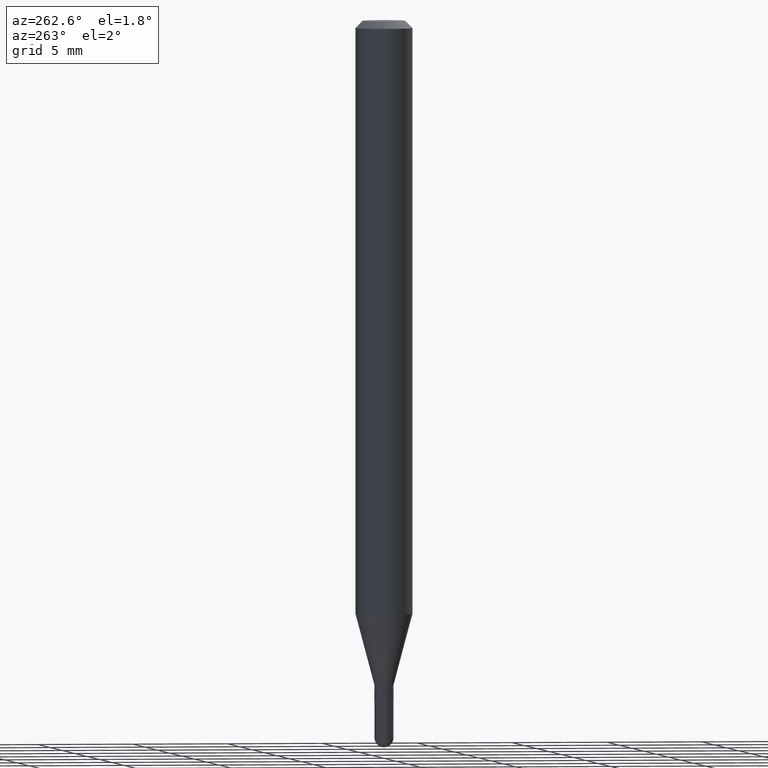
[diagram: clean part render]
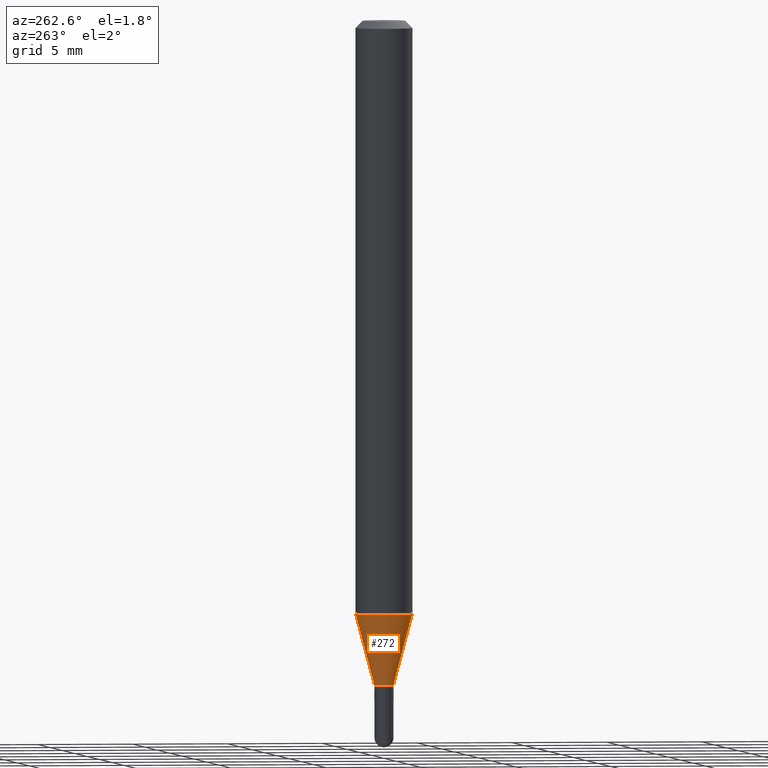
[diagram: same view with one face highlighted and labeled with its STEP entity id]
A machine part, auxiliary view. The second image highlights one B-rep face of the part: STEP entity #272.
In plain terms, the highlighted conical surface has half-angle 15 deg.
Its self-contained STEP definition (entity closure, byte-faithful):
#4 = DIRECTION ( 'NONE',  ( -6.982962677686265922E-15, -1.000000000000000000, 0.000000000000000000 ) ) ;
#9 = DIRECTION ( 'NONE',  ( -2.446456800980005402E-29, 3.490066474063722068E-15, 1.000000000000000000 ) ) ;
#14 = ORIENTED_EDGE ( 'NONE', *, *, #67, .T. ) ;
#15 = EDGE_LOOP ( 'NONE', ( #253, #14, #455, #395 ) ) ;
#41 = AXIS2_PLACEMENT_3D ( 'NONE', #121, #193, #351 ) ;
#62 = VECTOR ( 'NONE', #276, 39.37007874015748143 ) ;
#67 = EDGE_CURVE ( 'NONE', #433, #138, #108, .T. ) ;
#69 = EDGE_CURVE ( 'NONE', #433, #250, #230, .T. ) ;
#76 = CARTESIAN_POINT ( 'NONE',  ( 3.346997549420744839E-29, -4.774759943166577128E-15, -1.368099999999999872 ) ) ;
#80 = VECTOR ( 'NONE', #129, 39.37007874015748854 ) ;
#108 = CIRCLE ( 'NONE', #296, 0.01969999999999951998 ) ;
#115 = CARTESIAN_POINT ( 'NONE',  ( 1.399769189447697785E-16, 0.01969999999999474255, -1.368099999999999872 ) ) ;
#121 = CARTESIAN_POINT ( 'NONE',  ( 2.987720201931407293E-29, -4.262222045558578692E-15, -1.221243800722163320 ) ) ;
#125 = CARTESIAN_POINT ( 'NONE',  ( -4.123439461173442039E-16, -0.05905000000000427962, -1.221243800722163320 ) ) ;
#129 = DIRECTION ( 'NONE',  ( -1.807323732225332111E-15, -0.2588190451025184635, 0.9659258262890689783 ) ) ;
#138 = VERTEX_POINT ( 'NONE', #312 ) ;
#153 = DIRECTION ( 'NONE',  ( -2.446456800980005402E-29, 3.490066474063722068E-15, 1.000000000000000000 ) ) ;
#156 = CONICAL_SURFACE ( 'NONE', #306, 0.01969999999999951998, 0.2617993877991505736 ) ;
#163 = DIRECTION ( 'NONE',  ( -6.982962677686265922E-15, -1.000000000000000000, 0.000000000000000000 ) ) ;
#193 = DIRECTION ( 'NONE',  ( -2.446456800980005402E-29, 3.490066474063722068E-15, 1.000000000000000000 ) ) ;
#207 = CARTESIAN_POINT ( 'NONE',  ( 3.346997549420744839E-29, -4.774759943166577128E-15, -1.368099999999999872 ) ) ;
#215 = CIRCLE ( 'NONE', #41, 0.05904999999999999832 ) ;
#230 = LINE ( 'NONE', #115, #62 ) ;
#250 = VERTEX_POINT ( 'NONE', #364 ) ;
#253 = ORIENTED_EDGE ( 'NONE', *, *, #69, .F. ) ;
#260 = VERTEX_POINT ( 'NONE', #125 ) ;
#272 = ADVANCED_FACE ( 'NONE', ( #440 ), #156, .T. ) ;
#275 = EDGE_CURVE ( 'NONE', #138, #260, #325, .T. ) ;
#276 = DIRECTION ( 'NONE',  ( 1.839019923739602287E-15, 0.2588190451025252359, 0.9659258262890670910 ) ) ;
#296 = AXIS2_PLACEMENT_3D ( 'NONE', #76, #153, #4 ) ;
#306 = AXIS2_PLACEMENT_3D ( 'NONE', #207, #9, #163 ) ;
#312 = CARTESIAN_POINT ( 'NONE',  ( -1.375643647503826063E-16, -0.01970000000000429741, -1.368099999999999872 ) ) ;
#325 = LINE ( 'NONE', #479, #80 ) ;
#351 = DIRECTION ( 'NONE',  ( -6.982962677686265922E-15, -1.000000000000000000, 4.626330217890369336E-15 ) ) ;
#364 = CARTESIAN_POINT ( 'NONE',  ( 4.195754854663688780E-16, 0.05904999999999572396, -1.221243800722163542 ) ) ;
#388 = CARTESIAN_POINT ( 'NONE',  ( 2.797762022055695255E-16, 0.01969999999999474255, -1.368099999999999872 ) ) ;
#395 = ORIENTED_EDGE ( 'NONE', *, *, #447, .F. ) ;
#433 = VERTEX_POINT ( 'NONE', #388 ) ;
#440 = FACE_OUTER_BOUND ( 'NONE', #15, .T. ) ;
#447 = EDGE_CURVE ( 'NONE', #250, #260, #215, .T. ) ;
#455 = ORIENTED_EDGE ( 'NONE', *, *, #275, .T. ) ;
#479 = CARTESIAN_POINT ( 'NONE',  ( -1.375643647503826063E-16, -0.01970000000000429741, -1.368099999999999872 ) ) ;